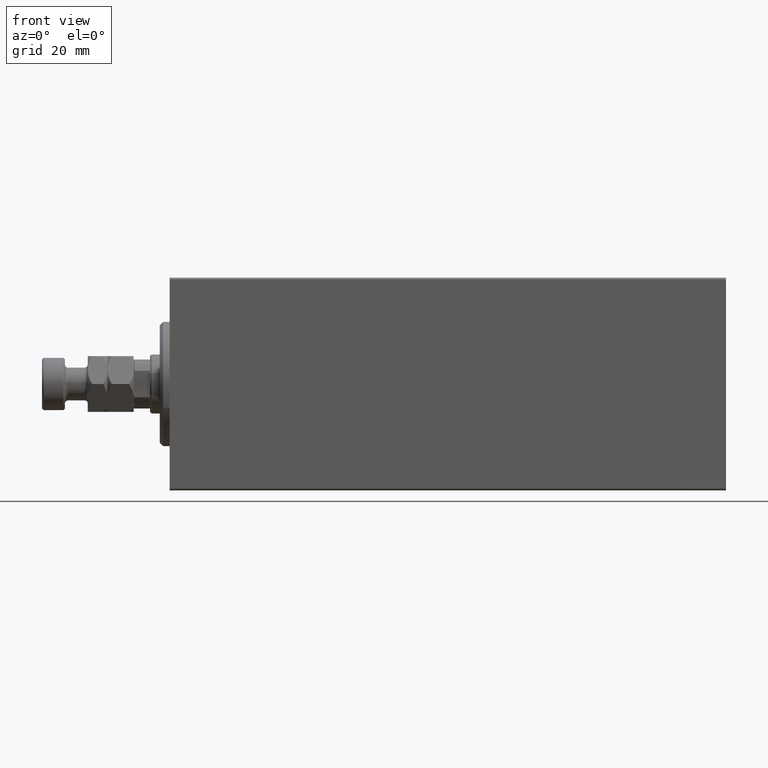
[diagram: clean part render]
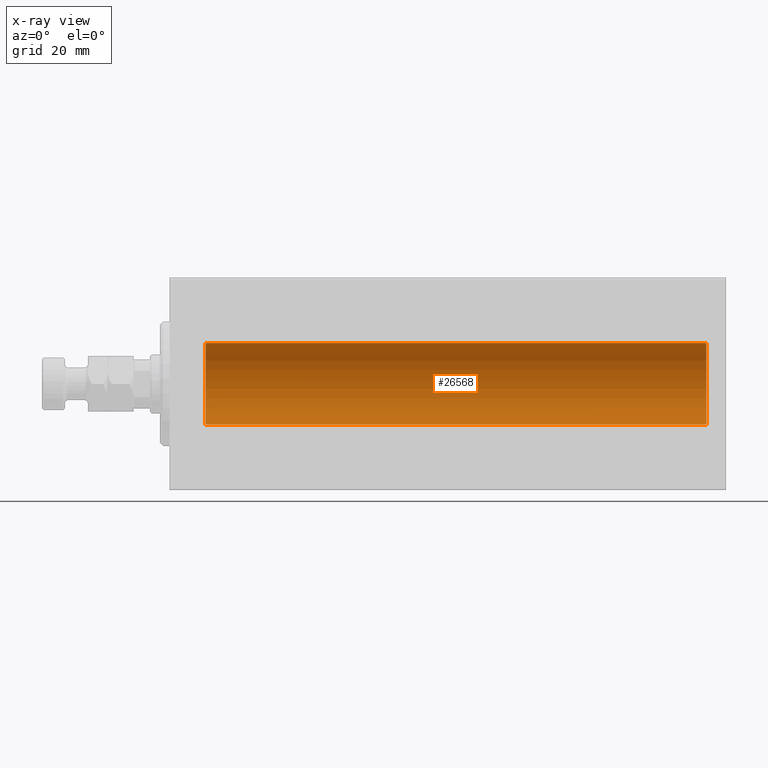
[diagram: x-ray — body ghosted, one internal face saturated and labeled with its STEP entity id]
A machine part, front view, then the same camera in x-ray: the body is ghosted and one INTERNAL B-rep face — a face not visible from any outside direction — is saturated and labeled: STEP entity #26568.
In plain terms, the highlighted cylindrical surface (partial cylindrical patch) has radius 12.5 mm, axis along (-1, -0, -0).
Its self-contained STEP definition (entity closure, byte-faithful):
#314 = VECTOR ( 'NONE', #1992, 1000.000000000000000 ) ;
#844 = DIRECTION ( 'NONE',  ( 0.000000000000000000, 0.000000000000000000, 1.000000000000000000 ) ) ;
#1992 = DIRECTION ( 'NONE',  ( -1.000000000000000000, -0.000000000000000000, -0.000000000000000000 ) ) ;
#2382 = EDGE_CURVE ( 'NONE', #7473, #28943, #33482, .T. ) ;
#4700 = CIRCLE ( 'NONE', #27462, 12.50000000000000000 ) ;
#6418 = CARTESIAN_POINT ( 'NONE',  ( 164.0000000000000000, 0.000000000000000000, 12.50000000000000000 ) ) ;
#7473 = VERTEX_POINT ( 'NONE', #20132 ) ;
#8148 = DIRECTION ( 'NONE',  ( -1.000000000000000000, 0.000000000000000000, 0.000000000000000000 ) ) ;
#9402 = ORIENTED_EDGE ( 'NONE', *, *, #32939, .F. ) ;
#9421 = CARTESIAN_POINT ( 'NONE',  ( 164.0000000000000000, 0.000000000000000000, 0.000000000000000000 ) ) ;
#9588 = VERTEX_POINT ( 'NONE', #15529 ) ;
#10809 = VECTOR ( 'NONE', #26150, 1000.000000000000000 ) ;
#14596 = EDGE_CURVE ( 'NONE', #9588, #28943, #18926, .T. ) ;
#15524 = ORIENTED_EDGE ( 'NONE', *, *, #2382, .F. ) ;
#15529 = CARTESIAN_POINT ( 'NONE',  ( 11.00000000000001066, 0.000000000000000000, 12.50000000000000000 ) ) ;
#15849 = ORIENTED_EDGE ( 'NONE', *, *, #14596, .T. ) ;
#18926 = CIRCLE ( 'NONE', #34303, 12.50000000000000000 ) ;
#20132 = CARTESIAN_POINT ( 'NONE',  ( 164.0000000000000000, 1.530808498934191521E-15, -12.50000000000000000 ) ) ;
#20733 = AXIS2_PLACEMENT_3D ( 'NONE', #9421, #41341, #40664 ) ;
#23206 = FACE_OUTER_BOUND ( 'NONE', #26305, .T. ) ;
#23384 = CARTESIAN_POINT ( 'NONE',  ( 164.0000000000000000, 1.530808498934191521E-15, -12.50000000000000000 ) ) ;
#24645 = CARTESIAN_POINT ( 'NONE',  ( 11.00000000000001066, 1.530808498934191521E-15, -12.50000000000000000 ) ) ;
#25844 = DIRECTION ( 'NONE',  ( 0.000000000000000000, 0.000000000000000000, 1.000000000000000000 ) ) ;
#26150 = DIRECTION ( 'NONE',  ( -1.000000000000000000, -0.000000000000000000, -0.000000000000000000 ) ) ;
#26305 = EDGE_LOOP ( 'NONE', ( #15524, #9402, #28180, #15849 ) ) ;
#26568 = ADVANCED_FACE ( 'NONE', ( #23206 ), #26647, .F. ) ;
#26647 = CYLINDRICAL_SURFACE ( 'NONE', #20733, 12.50000000000000000 ) ;
#27462 = AXIS2_PLACEMENT_3D ( 'NONE', #39628, #8148, #25844 ) ;
#28180 = ORIENTED_EDGE ( 'NONE', *, *, #45332, .T. ) ;
#28225 = CARTESIAN_POINT ( 'NONE',  ( 11.00000000000001066, 0.000000000000000000, 0.000000000000000000 ) ) ;
#28943 = VERTEX_POINT ( 'NONE', #24645 ) ;
#29601 = CARTESIAN_POINT ( 'NONE',  ( 164.0000000000000000, 0.000000000000000000, 12.50000000000000000 ) ) ;
#30058 = LINE ( 'NONE', #29601, #10809 ) ;
#32939 = EDGE_CURVE ( 'NONE', #44165, #7473, #4700, .T. ) ;
#33482 = LINE ( 'NONE', #23384, #314 ) ;
#34303 = AXIS2_PLACEMENT_3D ( 'NONE', #28225, #38788, #844 ) ;
#38788 = DIRECTION ( 'NONE',  ( -1.000000000000000000, 0.000000000000000000, 0.000000000000000000 ) ) ;
#39628 = CARTESIAN_POINT ( 'NONE',  ( 164.0000000000000000, 0.000000000000000000, 0.000000000000000000 ) ) ;
#40664 = DIRECTION ( 'NONE',  ( 0.000000000000000000, 0.000000000000000000, 1.000000000000000000 ) ) ;
#41341 = DIRECTION ( 'NONE',  ( -1.000000000000000000, -0.000000000000000000, -0.000000000000000000 ) ) ;
#44165 = VERTEX_POINT ( 'NONE', #6418 ) ;
#45332 = EDGE_CURVE ( 'NONE', #44165, #9588, #30058, .T. ) ;